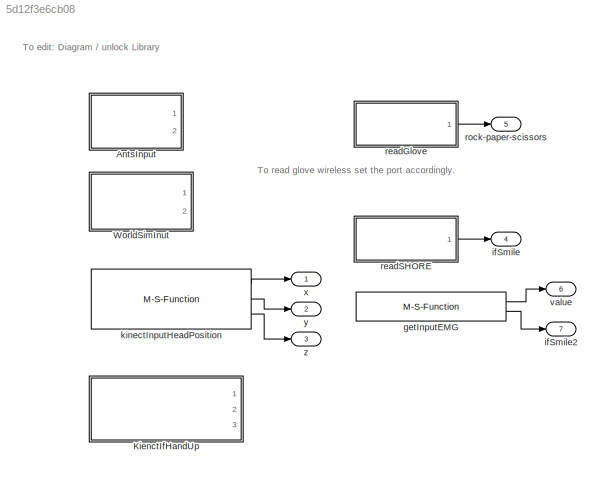
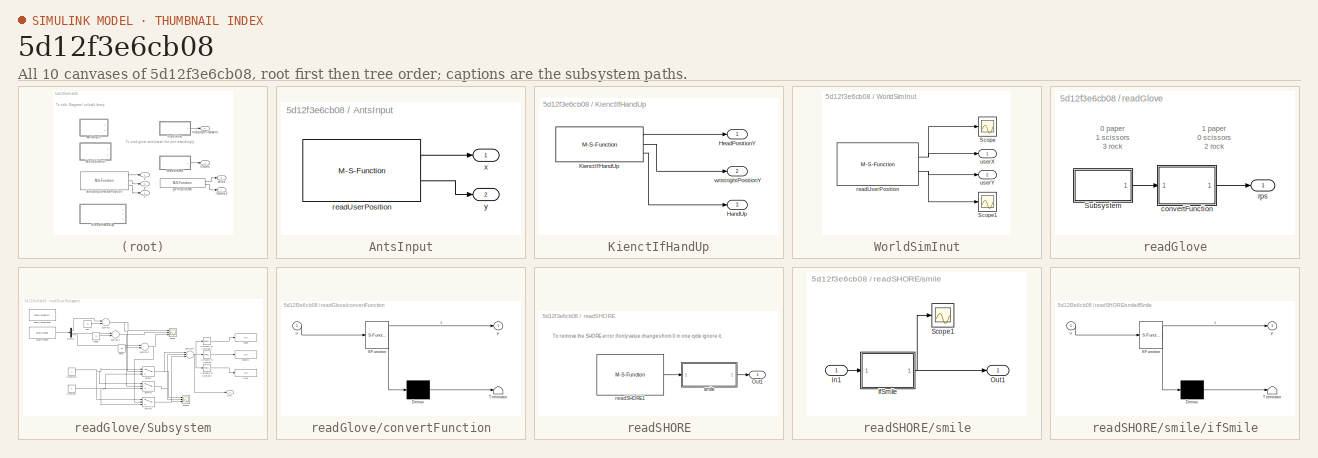
[diagram: thumbnail index - all 10 canvases of the model, root first then tree order]
MODEL slx_5d12f3e6cb08
KIND library
BLOCK [SubSystem] AntsInput
  Ports = [0, 2]
  RequestExecContextInheritance = off
BLOCK [M-S-Function] AntsInput/readUserPosition
  FunctionName = yarpReadAnts_sfun
  Parameters = '/ants/out','/simulink/in'
  Ports = [0, 2]
BLOCK [Outport] AntsInput/x
  IconDisplay = Port number
BLOCK [Outport] AntsInput/y
  IconDisplay = Port number
  Port = 2
BLOCK [SubSystem] KienctIfHandUp
  Ports = [0, 3]
  RequestExecContextInheritance = off
BLOCK [Outport] KienctIfHandUp/HandUp
  IconDisplay = Port number
  Port = 3
BLOCK [Outport] KienctIfHandUp/HeadPositionY
  IconDisplay = Port number
BLOCK [M-S-Function] KienctIfHandUp/KienctIfHandUp
  FunctionName = yarpReadKinect_sfun
  Parameters = '/mary/output','/simulink/in'
  Ports = [0, 3]
BLOCK [Outport] KienctIfHandUp/wristrightPositionY
  IconDisplay = Port number
  Port = 2
BLOCK [SubSystem] WorldSimInut
  Ports = [0, 2]
  RequestExecContextInheritance = off
BLOCK [Scope] WorldSimInut/Scope
  Floating = off
  NumInputPorts = 1
  Ports = [1]
  SaveName = ScopeData1
  ShowLegends = off
BLOCK [Scope] WorldSimInut/Scope1
  Floating = off
  NumInputPorts = 1
  Ports = [1]
  SaveName = ScopeData2
  ShowLegends = off
BLOCK [M-S-Function] WorldSimInut/readUserPosition
  FunctionName = yarpReadAnts_sfun
  Parameters = '/WS/actors/out','/simulink/in'
  Ports = [0, 2]
BLOCK [Outport] WorldSimInut/userX
  IconDisplay = Port number
BLOCK [Outport] WorldSimInut/userY
  IconDisplay = Port number
  Port = 2
BLOCK [M-S-Function] getInputEMG
  FunctionName = yarpReadEMG_sfun
  Parameters = '/python/sending','/simulink/in1'
  Ports = [0, 2]
BLOCK [Outport] ifSmile
  IconDisplay = Port number
  Port = 4
BLOCK [Outport] ifSmile2
  IconDisplay = Port number
  Port = 7
BLOCK [M-S-Function] kinectInputHeadPosition
  FunctionName = yarpReadKinectHeadP_sfun
  Parameters = '/mary/output','/simulink/in'
  Ports = [0, 3]
BLOCK [SubSystem] readGlove
  Ports = [0, 1]
  RequestExecContextInheritance = off
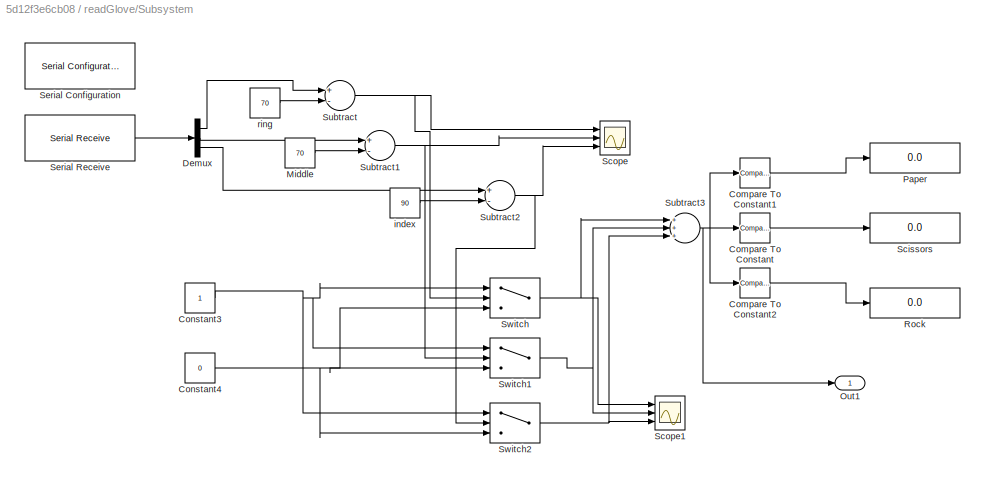
BLOCK [SubSystem] readGlove/Subsystem
  Ports = [0, 1]
  RequestExecContextInheritance = off
BLOCK [Reference] readGlove/Subsystem/Compare To Constant  REF=simulink/Logic and Bit
Operations/Compare
To Constant
  OutDataTypeStr = boolean
  Ports = [1, 1]
  SourceBlock = simulink/Logic and Bit\nOperations/Compare\nTo Constant
  SourceType = Compare To Constant
  ZeroCross = on
  const = 1
  relop = ==
BLOCK [Reference] readGlove/Subsystem/Compare To Constant1  REF=simulink/Logic and Bit
Operations/Compare
To Constant
  OutDataTypeStr = boolean
  Ports = [1, 1]
  SourceBlock = simulink/Logic and Bit\nOperations/Compare\nTo Constant
  SourceType = Compare To Constant
  ZeroCross = on
  const = 0
  relop = ==
BLOCK [Reference] readGlove/Subsystem/Compare To Constant2  REF=simulink/Logic and Bit
Operations/Compare
To Constant
  OutDataTypeStr = boolean
  Ports = [1, 1]
  SourceBlock = simulink/Logic and Bit\nOperations/Compare\nTo Constant
  SourceType = Compare To Constant
  ZeroCross = on
  const = 3
  relop = ==
BLOCK [Constant] readGlove/Subsystem/Constant3
BLOCK [Constant] readGlove/Subsystem/Constant4
  Value = 0
BLOCK [Demux] readGlove/Subsystem/Demux
  DisplayOption = bar
  Outputs = 3
  Ports = [1, 3]
BLOCK [Constant] readGlove/Subsystem/Middle
  Value = 70
BLOCK [Outport] readGlove/Subsystem/Out1
  IconDisplay = Port number
BLOCK [Display] readGlove/Subsystem/Paper
  Decimation = 1
  Ports = [1]
BLOCK [Display] readGlove/Subsystem/Rock
  Decimation = 1
  Ports = [1]
BLOCK [Display] readGlove/Subsystem/Scissors
  Decimation = 1
  Ports = [1]
BLOCK [Scope] readGlove/Subsystem/Scope
  DataFormat = StructureWithTime
  Floating = off
  NumInputPorts = 3
  Ports = [3]
  SampleTime = 0
  ShowLegends = off
  YMax = 200~200~200
  YMin = -25~20~-25
BLOCK [Scope] readGlove/Subsystem/Scope1
  DataFormat = StructureWithTime
  Floating = off
  NumInputPorts = 3
  Ports = [3]
  SampleTime = 0
  SaveName = ScopeData1
  ShowLegends = off
  YMax = 1.5~1.5~1.5
  YMin = -0.5~-0.5~-1
BLOCK [Reference] readGlove/Subsystem/Serial Configuration  REF=instrumentlib/Serial Configuration
  BaudRate = 9600
  ByteOrder = LittleEndian
  ComPort = COM4
  ComPortMenu = COM4
  DataBits = 8
  FlowControl = none
  ObjConstructor = serial('COM4');
  Parity = none
  Ports = []
  Priority = -200000
  SourceBlock = instrumentlib/Serial Configuration
  SourceType = Serial Configuration
  StopBits = 1
  Timeout = 10
BLOCK [Reference] readGlove/Subsystem/Serial Receive  REF=instrumentlib/Serial Receive
  ActionDataUnavailable = Output last received value
  ComPort = COM4
  ComPortMenu = COM4
  CustomValue = 0
  DataSize = [3  1]
  DataType = uint8
  EnableBlockingMode = on
  ObjConstructor = serial('COM4');
  Ports = [0, 1]
  SampleTime = 0.01
  SourceBlock = instrumentlib/Serial Receive
  SourceType = Serial Receive
  Terminator = <none>
BLOCK [Sum] readGlove/Subsystem/Subtract
  InputSameDT = off
  Inputs = +-
  OutDataTypeStr = Inherit: Inherit via internal rule
  Ports = [2, 1]
  SaturateOnIntegerOverflow = off
BLOCK [Sum] readGlove/Subsystem/Subtract1
  InputSameDT = off
  Inputs = +-
  OutDataTypeStr = Inherit: Inherit via internal rule
  Ports = [2, 1]
  SaturateOnIntegerOverflow = off
BLOCK [Sum] readGlove/Subsystem/Subtract2
  InputSameDT = off
  Inputs = +-
  OutDataTypeStr = Inherit: Inherit via internal rule
  Ports = [2, 1]
  SaturateOnIntegerOverflow = off
BLOCK [Sum] readGlove/Subsystem/Subtract3
  InputSameDT = off
  Inputs = +++
  OutDataTypeStr = Inherit: Inherit via internal rule
  Ports = [3, 1]
  SaturateOnIntegerOverflow = off
BLOCK [Switch] readGlove/Subsystem/Switch
  Criteria = u2 > Threshold
  InputSameDT = off
  SaturateOnIntegerOverflow = off
  Threshold = 60
BLOCK [Switch] readGlove/Subsystem/Switch1
  Criteria = u2 > Threshold
  InputSameDT = off
  SaturateOnIntegerOverflow = off
  Threshold = 60
BLOCK [Switch] readGlove/Subsystem/Switch2
  Criteria = u2 > Threshold
  InputSameDT = off
  SaturateOnIntegerOverflow = off
  Threshold = 60
BLOCK [Constant] readGlove/Subsystem/index
  Value = 90
BLOCK [Constant] readGlove/Subsystem/ring
  Value = 70
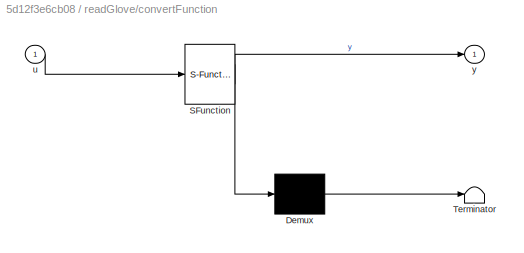
BLOCK [SubSystem] readGlove/convertFunction
  ErrorFcn = Stateflow.Translate.translate
  PermitHierarchicalResolution = ExplicitOnly
  Ports = [1, 1]
  RequestExecContextInheritance = off
  SFBlockType = MATLAB Function
  TreatAsAtomicUnit = on
BLOCK [Demux] readGlove/convertFunction/ Demux 
  Outputs = 1
  Ports = [1, 1]
BLOCK [S-Function] readGlove/convertFunction/ SFunction 
  EnableBusSupport = off
  FunctionName = sf_sfun
  PortCounts = [1 2]
  Ports = [1, 2]
  Tag = Stateflow S-Function lib_affectiveChar_input 3
BLOCK [Terminator] readGlove/convertFunction/ Terminator 
BLOCK [Inport] readGlove/convertFunction/u
  IconDisplay = Port number
BLOCK [Outport] readGlove/convertFunction/y
  IconDisplay = Port number
BLOCK [Outport] readGlove/rps
  IconDisplay = Port number
BLOCK [SubSystem] readSHORE
  Ports = [0, 1]
  RequestExecContextInheritance = off
BLOCK [Outport] readSHORE/Out1
  IconDisplay = Port number
BLOCK [M-S-Function] readSHORE/readSHORE1
  FunctionName = yarpReadSHORE_sfun
  Parameters = '/testSender','/simulink/in'
  Ports = [0, 1]
BLOCK [SubSystem] readSHORE/smile
  Ports = [1, 1]
  RequestExecContextInheritance = off
BLOCK [Inport] readSHORE/smile/In1
  IconDisplay = Port number
BLOCK [Outport] readSHORE/smile/Out1
  IconDisplay = Port number
BLOCK [Scope] readSHORE/smile/Scope1
  Floating = off
  NumInputPorts = 1
  Ports = [1]
  SaveName = ScopeData3
  ShowLegends = off
BLOCK [SubSystem] readSHORE/smile/ifSmile
  ErrorFcn = Stateflow.Translate.translate
  PermitHierarchicalResolution = ExplicitOnly
  Ports = [1, 1]
  RequestExecContextInheritance = off
  SFBlockType = MATLAB Function
  TreatAsAtomicUnit = on
BLOCK [Demux] readSHORE/smile/ifSmile/ Demux 
  Outputs = 1
  Ports = [1, 1]
BLOCK [S-Function] readSHORE/smile/ifSmile/ SFunction 
  EnableBusSupport = on
  FunctionName = sf_sfun
  PortCounts = [1 2]
  Ports = [1, 2]
  Tag = Stateflow S-Function lib_affectiveChar_input 6
BLOCK [Terminator] readSHORE/smile/ifSmile/ Terminator 
BLOCK [Inport] readSHORE/smile/ifSmile/u
  IconDisplay = Port number
BLOCK [Outport] readSHORE/smile/ifSmile/y
  IconDisplay = Port number
BLOCK [Outport] rock-paper-scissors
  IconDisplay = Port number
  Port = 5
BLOCK [Outport] value
  IconDisplay = Port number
  Port = 6
BLOCK [Outport] x
  IconDisplay = Port number
BLOCK [Outport] y
  IconDisplay = Port number
  Port = 2
BLOCK [Outport] z
  IconDisplay = Port number
  Port = 3
ANNOTATION (root): To edit: Diagram / unlock Library
ANNOTATION (root): To read glove wireless set the port accordingly.
ANNOTATION readGlove: 0 paper 1 scissors 3 rock
ANNOTATION readGlove: 1 paper 0 scissors 2 rock
ANNOTATION readSHORE: To remove the SHORE error if only value changes from 0 in one cycle ignore it.
LINE AntsInput/readUserPosition:1 -> AntsInput/x:1
LINE AntsInput/readUserPosition:2 -> AntsInput/y:1
LINE KienctIfHandUp/KienctIfHandUp:1 -> KienctIfHandUp/HeadPositionY:1
LINE KienctIfHandUp/KienctIfHandUp:2 -> KienctIfHandUp/wristrightPositionY:1
LINE KienctIfHandUp/KienctIfHandUp:3 -> KienctIfHandUp/HandUp:1
NET WorldSimInut/readUserPosition:1 -> WorldSimInut/Scope:1, WorldSimInut/userX:1
NET WorldSimInut/readUserPosition:2 -> WorldSimInut/Scope1:1, WorldSimInut/userY:1
LINE getInputEMG:1 -> value:1
LINE getInputEMG:2 -> ifSmile2:1
LINE kinectInputHeadPosition:1 -> x:1
LINE kinectInputHeadPosition:2 -> y:1
LINE kinectInputHeadPosition:3 -> z:1
LINE readGlove/Subsystem/Compare To Constant1:1 -> readGlove/Subsystem/Paper:1
LINE readGlove/Subsystem/Compare To Constant2:1 -> readGlove/Subsystem/Rock:1
LINE readGlove/Subsystem/Compare To Constant:1 -> readGlove/Subsystem/Scissors:1
NET readGlove/Subsystem/Constant3:1 -> readGlove/Subsystem/Switch1:1, readGlove/Subsystem/Switch2:1, readGlove/Subsystem/Switch:1
NET readGlove/Subsystem/Constant4:1 -> readGlove/Subsystem/Switch1:3, readGlove/Subsystem/Switch2:3, readGlove/Subsystem/Switch:3
LINE readGlove/Subsystem/Demux:1 -> readGlove/Subsystem/Subtract:1
LINE readGlove/Subsystem/Demux:2 -> readGlove/Subsystem/Subtract1:1
LINE readGlove/Subsystem/Demux:3 -> readGlove/Subsystem/Subtract2:1
LINE readGlove/Subsystem/Middle:1 -> readGlove/Subsystem/Subtract1:2
LINE readGlove/Subsystem/Serial Receive:1 -> readGlove/Subsystem/Demux:1
NET readGlove/Subsystem/Subtract1:1 -> readGlove/Subsystem/Scope:2, readGlove/Subsystem/Switch1:2
NET readGlove/Subsystem/Subtract2:1 -> readGlove/Subsystem/Scope:3, readGlove/Subsystem/Switch2:2
NET readGlove/Subsystem/Subtract3:1 -> readGlove/Subsystem/Compare To Constant1:1, readGlove/Subsystem/Compare To Constant2:1, readGlove/Subsystem/Compare To Constant:1, readGlove/Subsystem/Out1:1
NET readGlove/Subsystem/Subtract:1 -> readGlove/Subsystem/Scope:1, readGlove/Subsystem/Switch:2
NET readGlove/Subsystem/Switch1:1 -> readGlove/Subsystem/Scope1:2, readGlove/Subsystem/Subtract3:2
NET readGlove/Subsystem/Switch2:1 -> readGlove/Subsystem/Scope1:3, readGlove/Subsystem/Subtract3:3
NET readGlove/Subsystem/Switch:1 -> readGlove/Subsystem/Scope1:1, readGlove/Subsystem/Subtract3:1
LINE readGlove/Subsystem/index:1 -> readGlove/Subsystem/Subtract2:2
LINE readGlove/Subsystem/ring:1 -> readGlove/Subsystem/Subtract:2
LINE readGlove/Subsystem:1 -> readGlove/convertFunction:1
LINE readGlove/convertFunction:1 -> readGlove/rps:1
LINE readGlove:1 -> rock-paper-scissors:1
LINE readSHORE/readSHORE1:1 -> readSHORE/smile:1
LINE readSHORE/smile/In1:1 -> readSHORE/smile/ifSmile:1
NET readSHORE/smile/ifSmile:1 -> readSHORE/smile/Out1:1, readSHORE/smile/Scope1:1
LINE readSHORE/smile:1 -> readSHORE/Out1:1
LINE readSHORE:1 -> ifSmile:1
note: NET lines group one-source signal fan-out (src -> all destinations, sorted); 1:1 wires keep LINE
